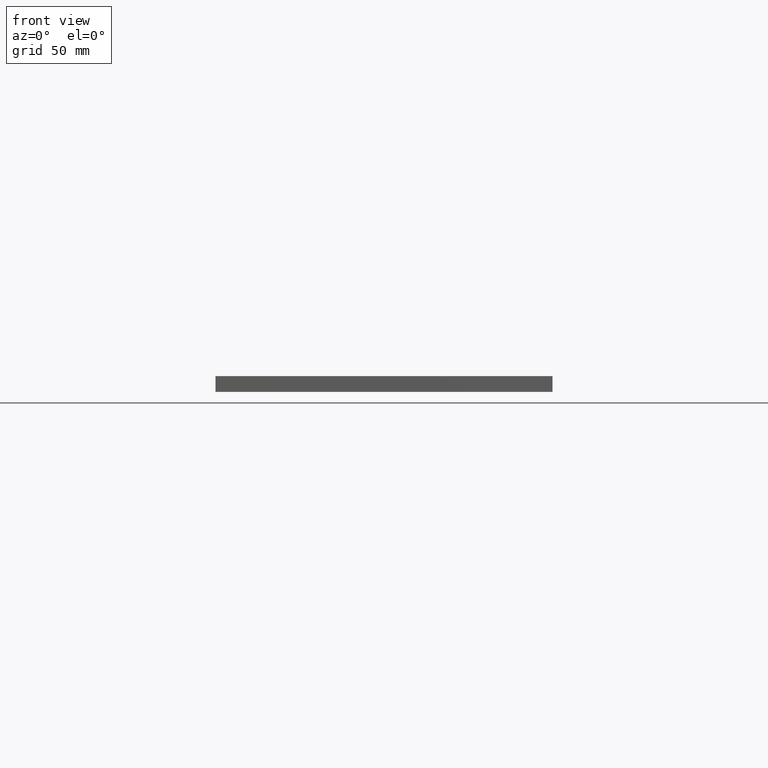
[diagram: clean part render]
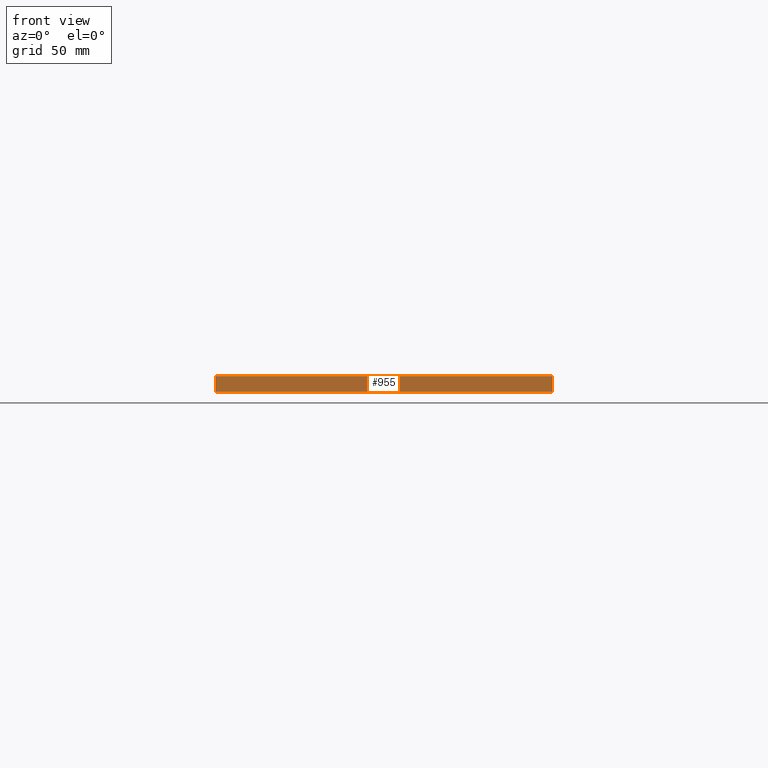
[diagram: same view with one face highlighted and labeled with its STEP entity id]
A machine part, front view. The second image highlights one B-rep face of the part: STEP entity #955.
In plain terms, the highlighted planar face has unit normal (0, -1, 0).
Its self-contained STEP definition (entity closure, byte-faithful):
#76 = LINE ( 'NONE', #1208, #79 ) ;
#79 = VECTOR ( 'NONE', #1210, 39.37007874015748100 ) ;
#80 = LINE ( 'NONE', #1203, #83 ) ;
#83 = VECTOR ( 'NONE', #1223, 39.37007874015748100 ) ;
#157 = CARTESIAN_POINT ( 'NONE',  ( -4.000000000000003600, 0.0000000000000000000, 0.1875000000000000300 ) ) ;
#162 = DIRECTION ( 'NONE',  ( 1.000000000000000000, 1.365923996832129900E-016, 0.0000000000000000000 ) ) ;
#233 = CARTESIAN_POINT ( 'NONE',  ( -4.000000000000003600, 0.0000000000000000000, 0.1875000000000000300 ) ) ;
#237 = CARTESIAN_POINT ( 'NONE',  ( -4.000000000000003600, 0.0000000000000000000, -0.1875000000000000300 ) ) ;
#285 = CARTESIAN_POINT ( 'NONE',  ( 4.000000000000008000, 1.092739197465705300E-015, 0.1875000000000000300 ) ) ;
#291 = CARTESIAN_POINT ( 'NONE',  ( -4.000000000000003600, 0.0000000000000000000, -0.1875000000000000300 ) ) ;
#299 = CARTESIAN_POINT ( 'NONE',  ( 4.000000000000008000, 1.092739197465705300E-015, -0.1875000000000000300 ) ) ;
#308 = DIRECTION ( 'NONE',  ( 0.0000000000000000000, 0.0000000000000000000, 1.000000000000000000 ) ) ;
#414 = LINE ( 'NONE', #157, #419 ) ;
#419 = VECTOR ( 'NONE', #162, 39.37007874015748100 ) ;
#612 = VERTEX_POINT ( 'NONE', #233 ) ;
#615 = VERTEX_POINT ( 'NONE', #285 ) ;
#623 = VERTEX_POINT ( 'NONE', #291 ) ;
#626 = VERTEX_POINT ( 'NONE', #299 ) ;
#634 = VECTOR ( 'NONE', #308, 39.37007874015748100 ) ;
#635 = LINE ( 'NONE', #237, #634 ) ;
#680 = FACE_OUTER_BOUND ( 'NONE', #1000, .T. ) ;
#860 = EDGE_CURVE ( 'NONE', #623, #612, #635, .T. ) ;
#883 = AXIS2_PLACEMENT_3D ( 'NONE', #1327, #1328, #1324 ) ;
#955 = ADVANCED_FACE ( 'NONE', ( #680 ), #1330, .T. ) ;
#1000 = EDGE_LOOP ( 'NONE', ( #1538, #1541, #1539, #1540 ) ) ;
#1134 = EDGE_CURVE ( 'NONE', #626, #615, #76, .T. ) ;
#1136 = EDGE_CURVE ( 'NONE', #623, #626, #80, .T. ) ;
#1203 = CARTESIAN_POINT ( 'NONE',  ( -4.000000000000003600, 0.0000000000000000000, -0.1875000000000000300 ) ) ;
#1208 = CARTESIAN_POINT ( 'NONE',  ( 4.000000000000008000, 1.092739197465705300E-015, -0.1875000000000000300 ) ) ;
#1210 = DIRECTION ( 'NONE',  ( 0.0000000000000000000, 0.0000000000000000000, 1.000000000000000000 ) ) ;
#1223 = DIRECTION ( 'NONE',  ( 1.000000000000000000, 1.365923996832129900E-016, 0.0000000000000000000 ) ) ;
#1286 = EDGE_CURVE ( 'NONE', #612, #615, #414, .T. ) ;
#1324 = DIRECTION ( 'NONE',  ( 1.000000000000000000, 1.365923996832129900E-016, 0.0000000000000000000 ) ) ;
#1327 = CARTESIAN_POINT ( 'NONE',  ( -4.000000000000003600, 0.0000000000000000000, -0.1875000000000000300 ) ) ;
#1328 = DIRECTION ( 'NONE',  ( 1.365923996832129900E-016, -1.000000000000000000, 0.0000000000000000000 ) ) ;
#1330 = PLANE ( 'NONE',  #883 ) ;
#1538 = ORIENTED_EDGE ( 'NONE', *, *, #1286, .F. ) ;
#1539 = ORIENTED_EDGE ( 'NONE', *, *, #1136, .T. ) ;
#1540 = ORIENTED_EDGE ( 'NONE', *, *, #1134, .T. ) ;
#1541 = ORIENTED_EDGE ( 'NONE', *, *, #860, .F. ) ;